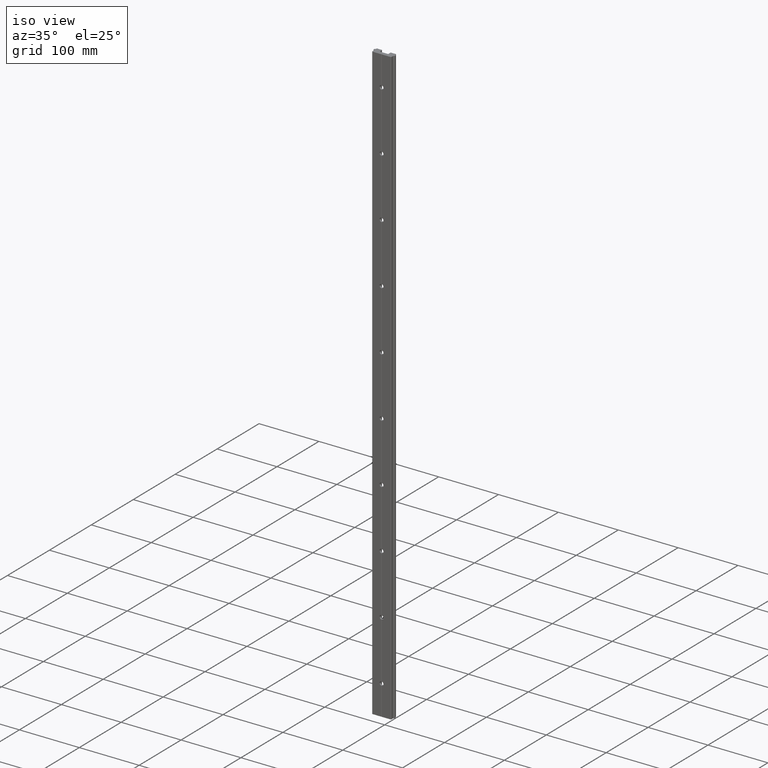
[diagram: clean part render]
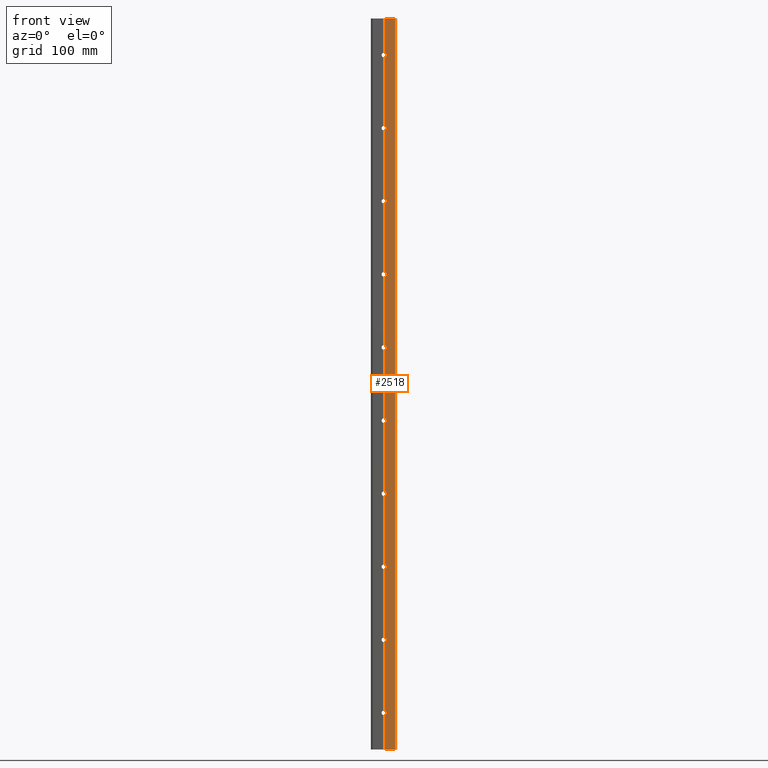
[diagram: tour spotlight — one face highlighted and labeled with its STEP entity id]
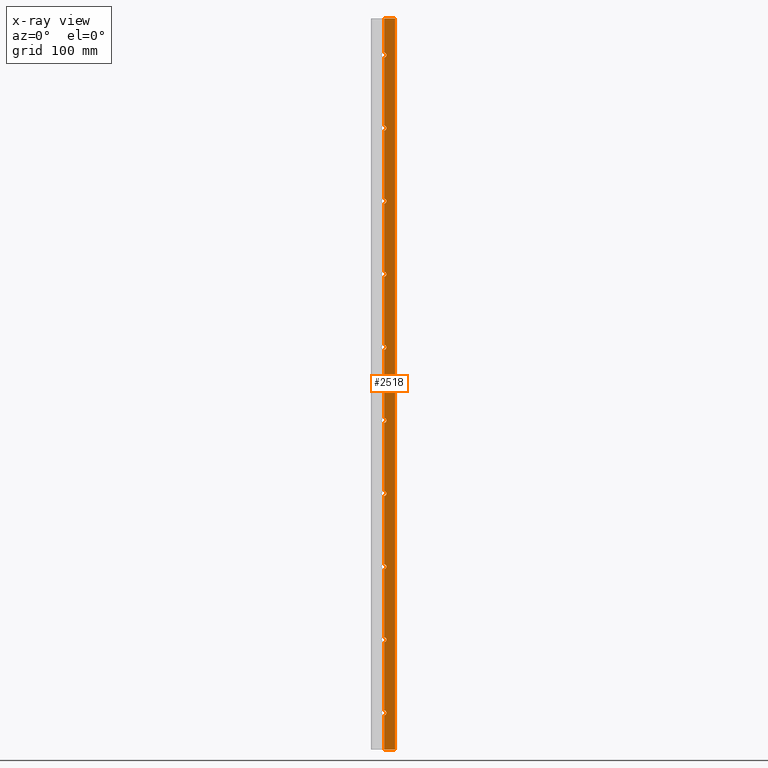
[diagram: x-ray of the same camera — body ghosted, this tour face saturated]
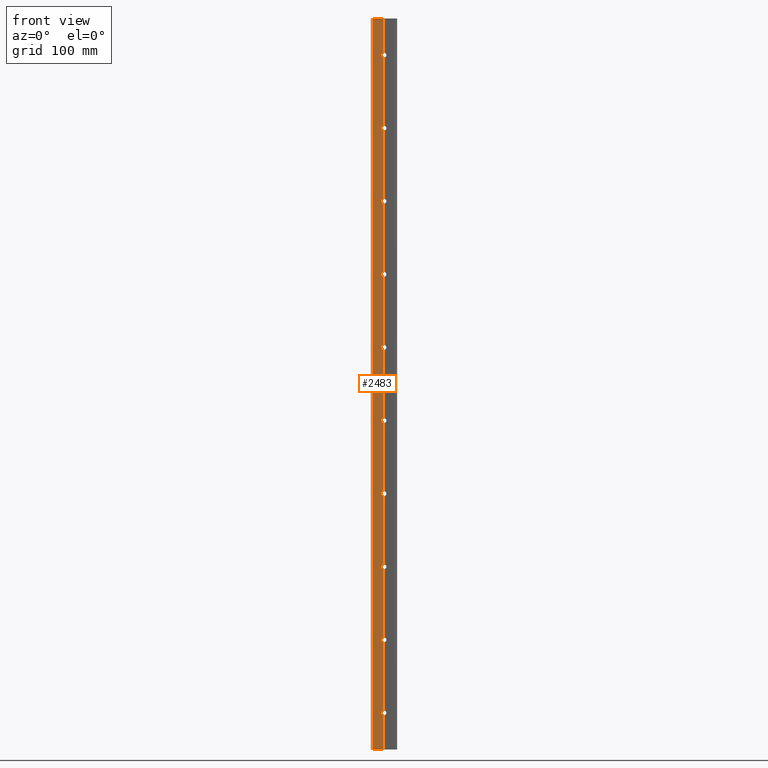
[diagram: tour spotlight — one face highlighted and labeled with its STEP entity id]
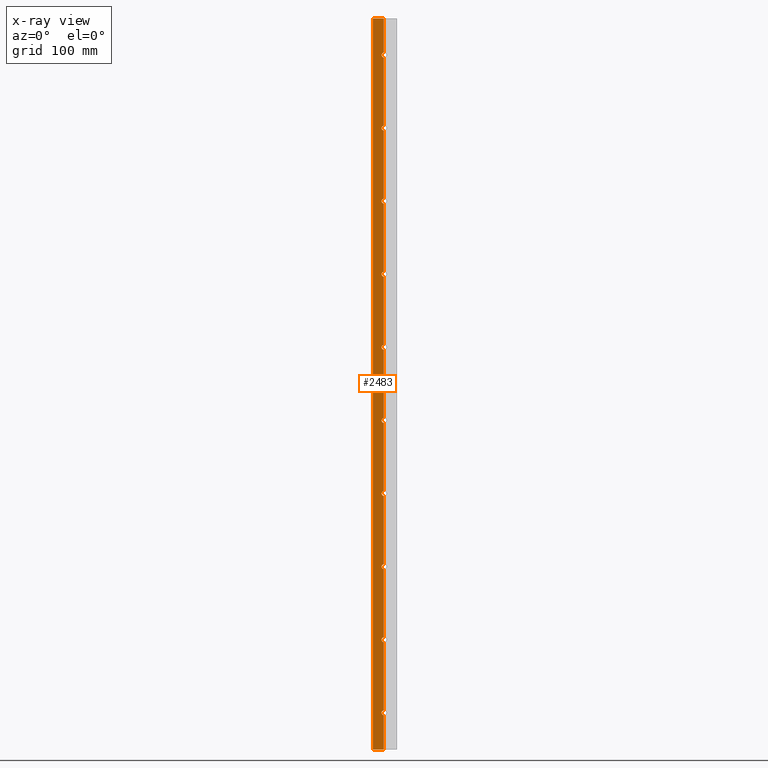
[diagram: x-ray of the same camera — body ghosted, this tour face saturated]
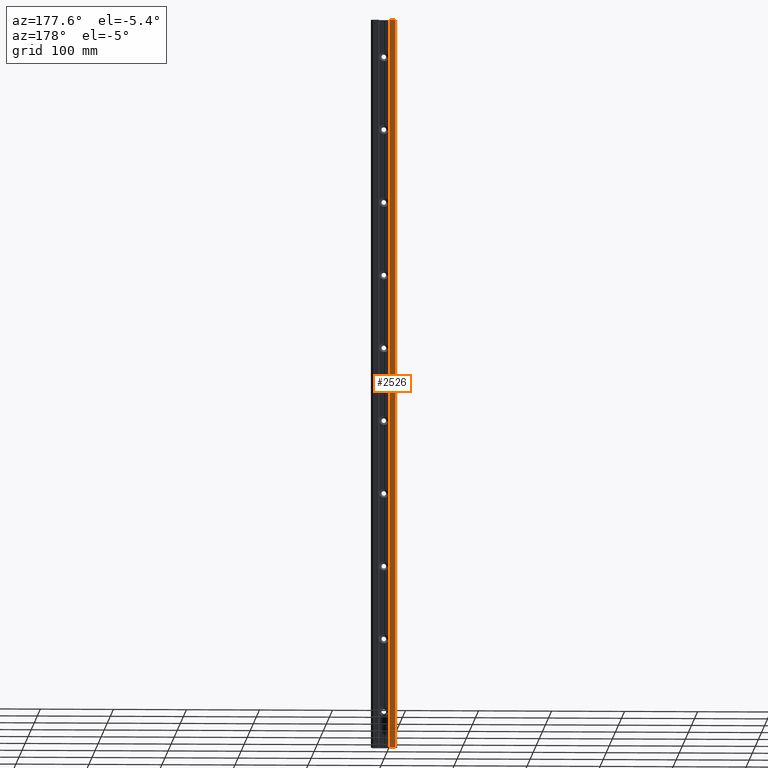
[diagram: tour spotlight — one face highlighted and labeled with its STEP entity id]
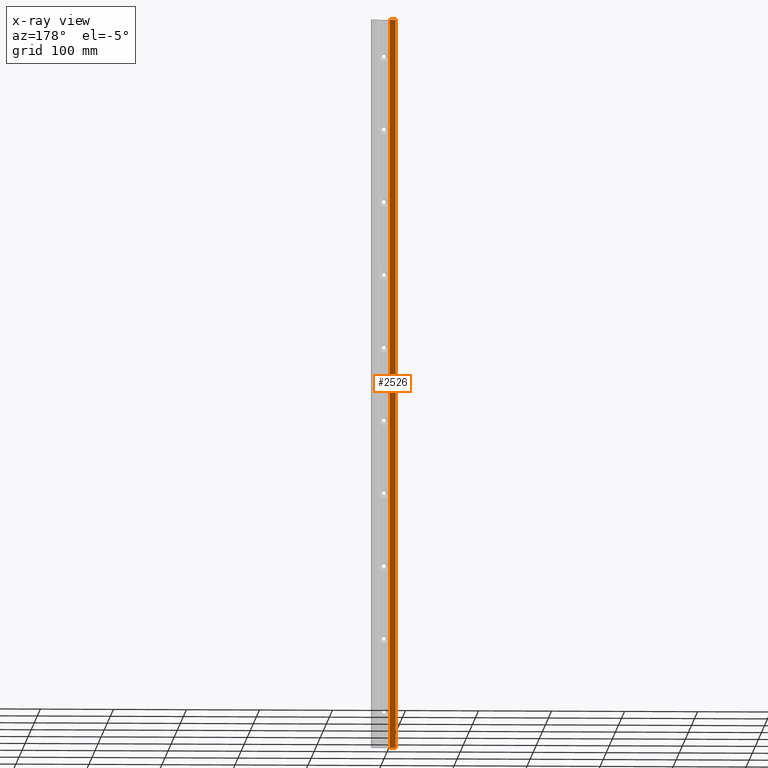
[diagram: x-ray of the same camera — body ghosted, this tour face saturated]
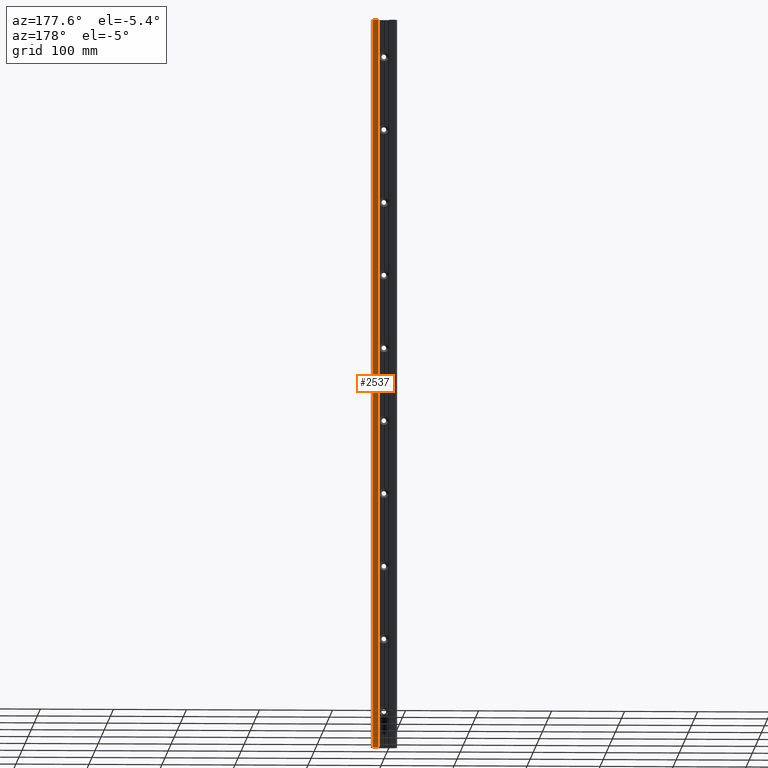
[diagram: tour spotlight — one face highlighted and labeled with its STEP entity id]
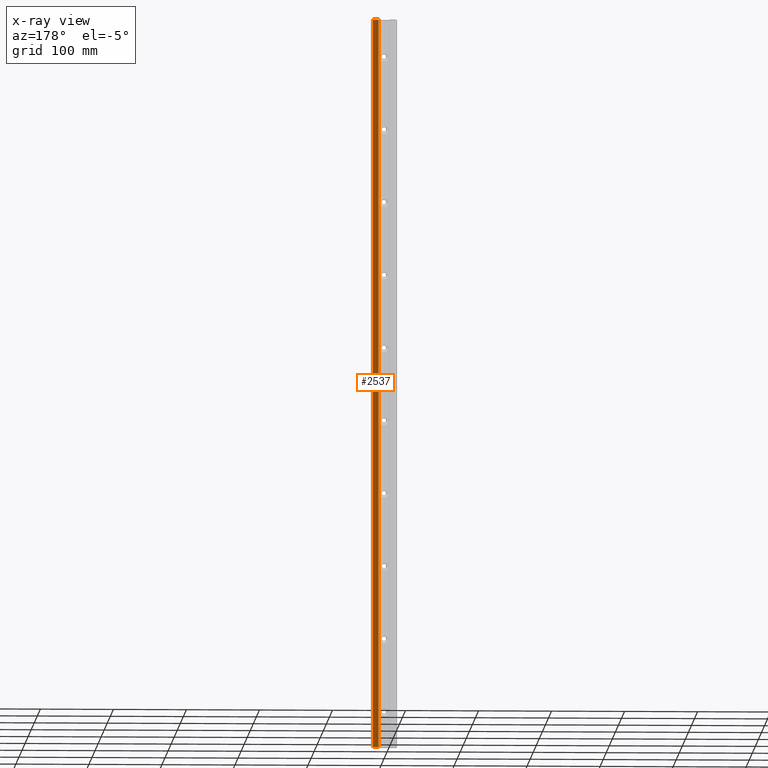
[diagram: x-ray of the same camera — body ghosted, this tour face saturated]
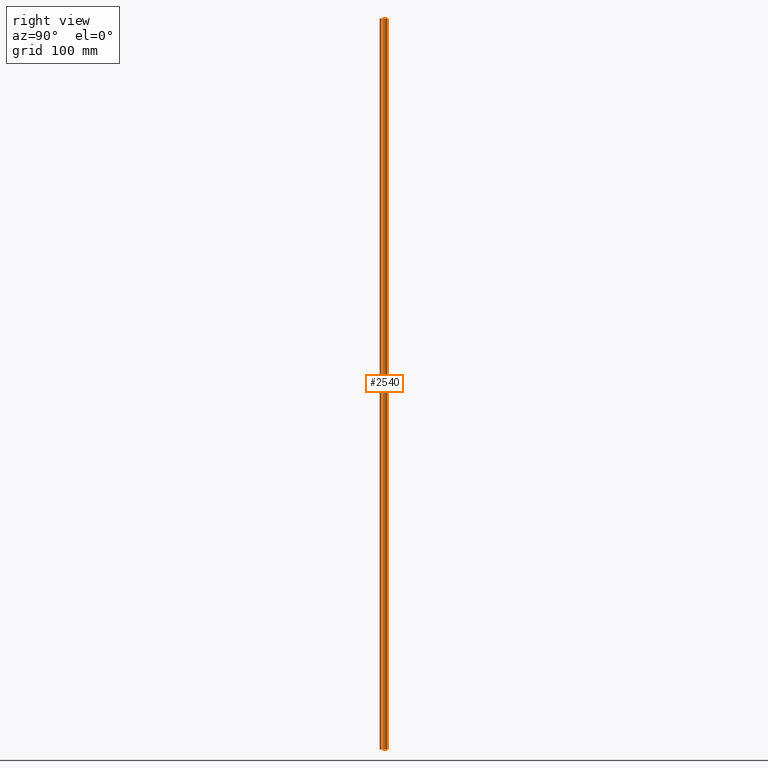
[diagram: tour spotlight — one face highlighted and labeled with its STEP entity id]
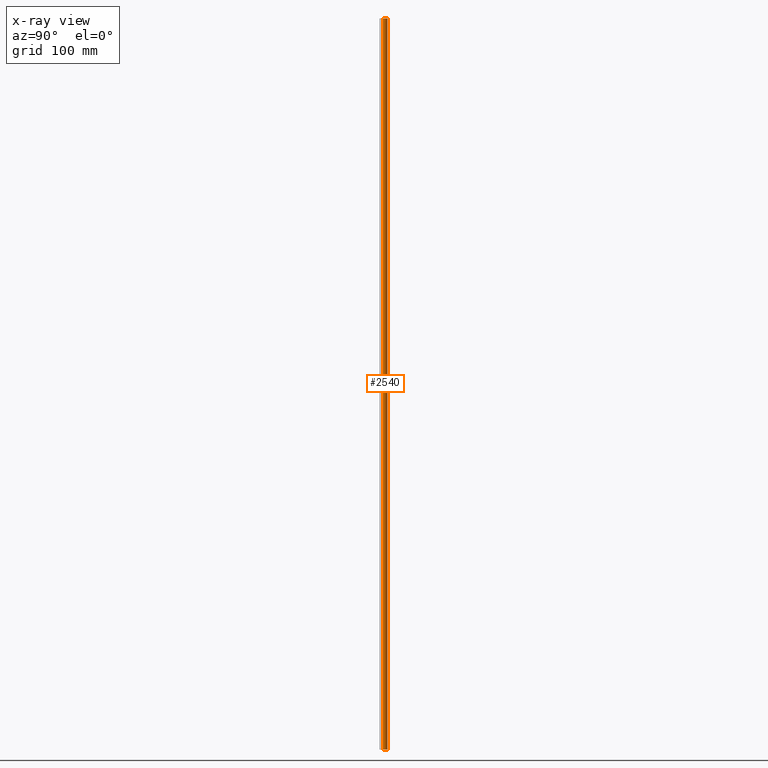
[diagram: x-ray of the same camera — body ghosted, this tour face saturated]
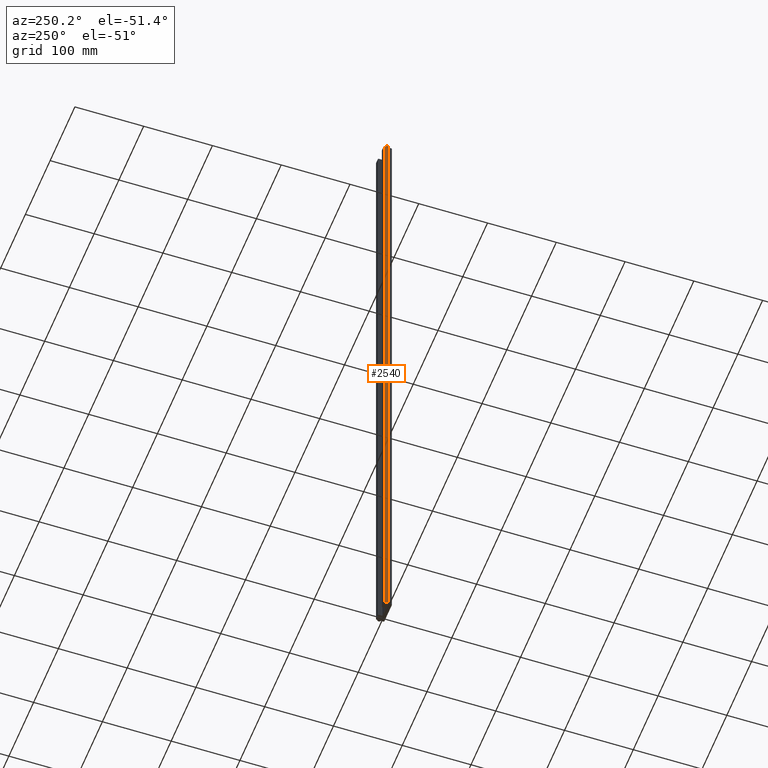
[diagram: tour spotlight — one face highlighted and labeled with its STEP entity id]
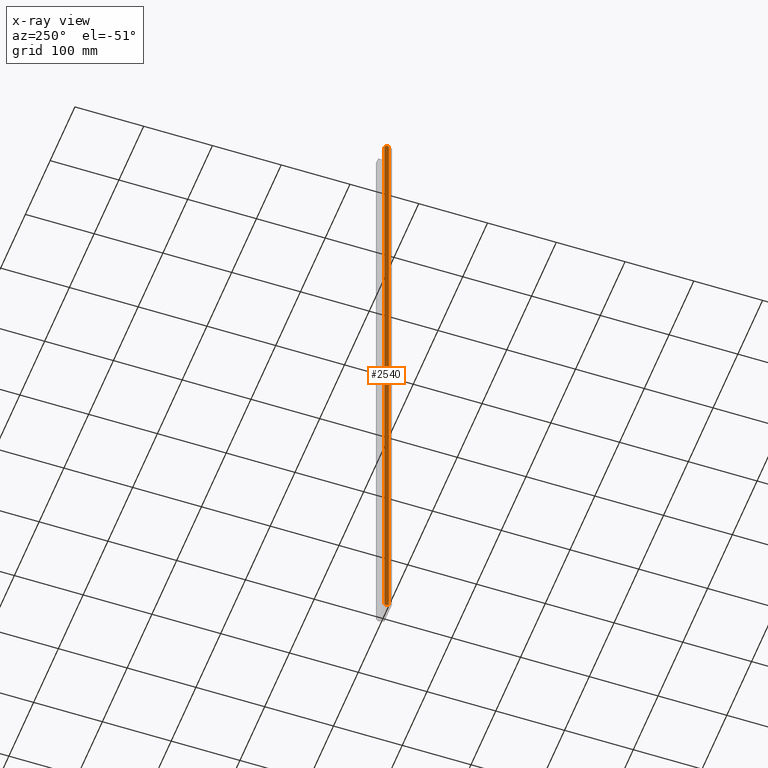
[diagram: x-ray of the same camera — body ghosted, this tour face saturated]
A machine part: a face-by-face anatomy tour. The part has 134 B-rep faces; the first image is the clean iso view, then the 6 largest visible faces are spotlighted one at a time (largest first), each with its STEP entity span.

Face 1 — front view, entity #2518. An x-ray twin of the same camera follows (body ghosted, this face saturated) — the face is partly hidden behind the body. In plain terms, the highlighted planar face has unit normal (0, -1, 0).
Definition (entity closure, byte-faithful):
#249=FACE_OUTER_BOUND('',#380,.T.);
#380=EDGE_LOOP('',(#2139,#2140,#2141,#2142,#2143,#2144,#2145,#2146,#2147,
#2148,#2149,#2150,#2151,#2152,#2153,#2154,#2155,#2156,#2157,#2158,#2159,
#2160,#2161,#2162));
#413=CIRCLE('',#2622,3.25);
#424=CIRCLE('',#2641,3.25);
#435=CIRCLE('',#2660,3.25);
#446=CIRCLE('',#2679,3.25);
#457=CIRCLE('',#2698,3.25);
#468=CIRCLE('',#2717,3.25);
#479=CIRCLE('',#2736,3.25);
#490=CIRCLE('',#2755,3.25);
#501=CIRCLE('',#2774,3.25);
#513=CIRCLE('',#2850,3.25);
#640=LINE('',#4340,#819);
#641=LINE('',#4343,#820);
#642=LINE('',#4345,#821);
#643=LINE('',#4347,#822);
#644=LINE('',#4349,#823);
#645=LINE('',#4351,#824);
#646=LINE('',#4353,#825);
#647=LINE('',#4355,#826);
#648=LINE('',#4357,#827);
#664=LINE('',#4414,#843);
#669=LINE('',#4431,#848);
#688=LINE('',#4487,#867);
#689=LINE('',#4489,#868);
#690=LINE('',#4490,#869);
#819=VECTOR('',#3469,10.);
#820=VECTOR('',#3474,10.);
#821=VECTOR('',#3477,10.);
#822=VECTOR('',#3480,10.);
#823=VECTOR('',#3483,10.);
#824=VECTOR('',#3486,10.);
#825=VECTOR('',#3489,10.);
#826=VECTOR('',#3492,10.);
#827=VECTOR('',#3495,10.);
#843=VECTOR('',#3549,10.);
#848=VECTOR('',#3562,10.);
#867=VECTOR('',#3611,10.);
#868=VECTOR('',#3614,10.);
#869=VECTOR('',#3615,10.);
#909=VERTEX_POINT('',#3757);
#910=VERTEX_POINT('',#3759);
#928=VERTEX_POINT('',#3811);
#929=VERTEX_POINT('',#3813);
#947=VERTEX_POINT('',#3865);
#948=VERTEX_POINT('',#3867);
#966=VERTEX_POINT('',#3919);
#967=VERTEX_POINT('',#3921);
#985=VERTEX_POINT('',#3973);
#986=VERTEX_POINT('',#3975);
#1004=VERTEX_POINT('',#4027);
#1005=VERTEX_POINT('',#4029);
#1023=VERTEX_POINT('',#4081);
#1024=VERTEX_POINT('',#4083);
#1042=VERTEX_POINT('',#4135);
#1043=VERTEX_POINT('',#4137);
#1061=VERTEX_POINT('',#4189);
#1062=VERTEX_POINT('',#4191);
#1078=VERTEX_POINT('',#4339);
#1086=VERTEX_POINT('',#4385);
#1094=VERTEX_POINT('',#4413);
#1101=VERTEX_POINT('',#4428);
#1102=VERTEX_POINT('',#4430);
#1124=VERTEX_POINT('',#4485);
#1156=EDGE_CURVE('',#910,#909,#413,.T.);
#1179=EDGE_CURVE('',#929,#928,#424,.T.);
#1202=EDGE_CURVE('',#948,#947,#435,.T.);
#1225=EDGE_CURVE('',#967,#966,#446,.T.);
#1248=EDGE_CURVE('',#986,#985,#457,.T.);
#1271=EDGE_CURVE('',#1005,#1004,#468,.T.);
#1294=EDGE_CURVE('',#1024,#1023,#479,.T.);
#1317=EDGE_CURVE('',#1043,#1042,#490,.T.);
#1340=EDGE_CURVE('',#1062,#1061,#501,.T.);
#1420=EDGE_CURVE('',#1078,#1062,#640,.T.);
#1422=EDGE_CURVE('',#1061,#1043,#641,.T.);
#1423=EDGE_CURVE('',#1042,#1024,#642,.T.);
#1424=EDGE_CURVE('',#1023,#1005,#643,.T.);
#1425=EDGE_CURVE('',#1004,#986,#644,.T.);
#1426=EDGE_CURVE('',#985,#967,#645,.T.);
#1427=EDGE_CURVE('',#966,#948,#646,.T.);
#1428=EDGE_CURVE('',#947,#929,#647,.T.);
#1429=EDGE_CURVE('',#928,#910,#648,.T.);
#1442=EDGE_CURVE('',#1086,#1078,#513,.T.);
#1456=EDGE_CURVE('',#1094,#1086,#664,.T.);
#1464=EDGE_CURVE('',#1101,#1102,#669,.T.);
#1493=EDGE_CURVE('',#1124,#1101,#688,.T.);
#1494=EDGE_CURVE('',#909,#1102,#689,.T.);
#1495=EDGE_CURVE('',#1094,#1124,#690,.T.);
#2139=ORIENTED_EDGE('',*,*,#1156,.T.);
#2140=ORIENTED_EDGE('',*,*,#1494,.T.);
#2141=ORIENTED_EDGE('',*,*,#1464,.F.);
#2142=ORIENTED_EDGE('',*,*,#1493,.F.);
#2143=ORIENTED_EDGE('',*,*,#1495,.F.);
#2144=ORIENTED_EDGE('',*,*,#1456,.T.);
#2145=ORIENTED_EDGE('',*,*,#1442,.T.);
#2146=ORIENTED_EDGE('',*,*,#1420,.T.);
#2147=ORIENTED_EDGE('',*,*,#1340,.T.);
#2148=ORIENTED_EDGE('',*,*,#1422,.T.);
#2149=ORIENTED_EDGE('',*,*,#1317,.T.);
#2150=ORIENTED_EDGE('',*,*,#1423,.T.);
#2151=ORIENTED_EDGE('',*,*,#1294,.T.);
#2152=ORIENTED_EDGE('',*,*,#1424,.T.);
#2153=ORIENTED_EDGE('',*,*,#1271,.T.);
#2154=ORIENTED_EDGE('',*,*,#1425,.T.);
#2155=ORIENTED_EDGE('',*,*,#1248,.T.);
#2156=ORIENTED_EDGE('',*,*,#1426,.T.);
#2157=ORIENTED_EDGE('',*,*,#1225,.T.);
#2158=ORIENTED_EDGE('',*,*,#1427,.T.);
#2159=ORIENTED_EDGE('',*,*,#1202,.T.);
#2160=ORIENTED_EDGE('',*,*,#1428,.T.);
#2161=ORIENTED_EDGE('',*,*,#1179,.T.);
#2162=ORIENTED_EDGE('',*,*,#1429,.T.);
#2395=PLANE('',#2878);
#2518=ADVANCED_FACE('',(#249),#2395,.T.);
#2622=AXIS2_PLACEMENT_3D('',#3760,#2950,#2951);
#2641=AXIS2_PLACEMENT_3D('',#3814,#2992,#2993);
#2660=AXIS2_PLACEMENT_3D('',#3868,#3034,#3035);
#2679=AXIS2_PLACEMENT_3D('',#3922,#3076,#3077);
#2698=AXIS2_PLACEMENT_3D('',#3976,#3118,#3119);
#2717=AXIS2_PLACEMENT_3D('',#4030,#3160,#3161);
#2736=AXIS2_PLACEMENT_3D('',#4084,#3202,#3203);
#2755=AXIS2_PLACEMENT_3D('',#4138,#3244,#3245);
#2774=AXIS2_PLACEMENT_3D('',#4192,#3286,#3287);
#2850=AXIS2_PLACEMENT_3D('',#4386,#3520,#3521);
#2878=AXIS2_PLACEMENT_3D('',#4488,#3612,#3613);
#2950=DIRECTION('center_axis',(-2.29701315439687E-16,1.,0.));
#2951=DIRECTION('ref_axis',(1.,0.,0.));
#2992=DIRECTION('center_axis',(-2.29701315439687E-16,1.,0.));
#2993=DIRECTION('ref_axis',(1.,0.,0.));
#3034=DIRECTION('center_axis',(-2.29701315439687E-16,1.,0.));
#3035=DIRECTION('ref_axis',(1.,0.,0.));
#3076=DIRECTION('center_axis',(-2.29701315439687E-16,1.,0.));
#3077=DIRECTION('ref_axis',(1.,0.,0.));
#3118=DIRECTION('center_axis',(-2.29701315439687E-16,1.,0.));
#3119=DIRECTION('ref_axis',(1.,0.,0.));
#3160=DIRECTION('center_axis',(-2.29701315439687E-16,1.,0.));
#3161=DIRECTION('ref_axis',(1.,0.,0.));
#3202=DIRECTION('center_axis',(-2.29701315439687E-16,1.,0.));
#3203=DIRECTION('ref_axis',(1.,0.,0.));
#3244=DIRECTION('center_axis',(-2.29701315439687E-16,1.,0.));
#3245=DIRECTION('ref_axis',(1.,0.,0.));
#3286=DIRECTION('center_axis',(-2.29701315439687E-16,1.,0.));
#3287=DIRECTION('ref_axis',(1.,0.,0.));
#3469=DIRECTION('',(0.,0.,-1.));
#3474=DIRECTION('',(0.,0.,-1.));
#3477=DIRECTION('',(0.,0.,-1.));
#3480=DIRECTION('',(0.,0.,-1.));
#3483=DIRECTION('',(0.,0.,-1.));
#3486=DIRECTION('',(0.,0.,-1.));
#3489=DIRECTION('',(0.,0.,-1.));
#3492=DIRECTION('',(0.,0.,-1.));
#3495=DIRECTION('',(0.,0.,-1.));
#3520=DIRECTION('center_axis',(-2.29701315439687E-16,1.,0.));
#3521=DIRECTION('ref_axis',(1.,0.,0.));
#3549=DIRECTION('',(0.,0.,-1.));
#3562=DIRECTION('',(-1.,-2.29701315439687E-16,0.));
#3611=DIRECTION('',(0.,0.,-1.));
#3612=DIRECTION('center_axis',(2.29701315439687E-16,-1.,0.));
#3613=DIRECTION('ref_axis',(1.,2.29701315439687E-16,0.));
#3614=DIRECTION('',(0.,0.,-1.));
#3615=DIRECTION('',(1.,2.29701315439687E-16,0.));
#3757=CARTESIAN_POINT('',(0.500000000000001,-7.5,-453.211308144666));
#3759=CARTESIAN_POINT('',(0.500000000000001,-7.5,-446.788691855334));
#3760=CARTESIAN_POINT('Origin',(0.,-7.5,-450.));
#3811=CARTESIAN_POINT('',(0.500000000000001,-7.5,-353.211308144666));
#3813=CARTESIAN_POINT('',(0.500000000000001,-7.5,-346.788691855334));
#3814=CARTESIAN_POINT('Origin',(0.,-7.5,-350.));
#3865=CARTESIAN_POINT('',(0.500000000000001,-7.5,-253.211308144666));
#3867=CARTESIAN_POINT('',(0.500000000000001,-7.5,-246.788691855334));
#3868=CARTESIAN_POINT('Origin',(0.,-7.5,-250.));
#3919=CARTESIAN_POINT('',(0.500000000000001,-7.5,-153.211308144666));
#3921=CARTESIAN_POINT('',(0.500000000000001,-7.5,-146.788691855334));
#3922=CARTESIAN_POINT('Origin',(0.,-7.5,-150.));
#3973=CARTESIAN_POINT('',(0.500000000000001,-7.5,-53.2113081446663));
#3975=CARTESIAN_POINT('',(0.500000000000001,-7.5,-46.7886918553337));
#3976=CARTESIAN_POINT('Origin',(0.,-7.5,-50.));
#4027=CARTESIAN_POINT('',(0.500000000000001,-7.5,46.7886918553337));
#4029=CARTESIAN_POINT('',(0.500000000000001,-7.5,53.2113081446663));
#4030=CARTESIAN_POINT('Origin',(0.,-7.5,50.));
#4081=CARTESIAN_POINT('',(0.500000000000001,-7.5,146.788691855334));
#4083=CARTESIAN_POINT('',(0.500000000000001,-7.5,153.211308144666));
#4084=CARTESIAN_POINT('Origin',(0.,-7.5,150.));
#4135=CARTESIAN_POINT('',(0.500000000000001,-7.5,246.788691855334));
#4137=CARTESIAN_POINT('',(0.500000000000001,-7.5,253.211308144666));
#4138=CARTESIAN_POINT('Origin',(0.,-7.5,250.));
#4189=CARTESIAN_POINT('',(0.500000000000001,-7.5,346.788691855334));
#4191=CARTESIAN_POINT('',(0.500000000000001,-7.5,353.211308144666));
#4192=CARTESIAN_POINT('Origin',(0.,-7.5,350.));
#4339=CARTESIAN_POINT('',(0.500000000000001,-7.5,446.788691855334));
#4340=CARTESIAN_POINT('',(0.500000000000001,-7.49999999999999,0.));
#4343=CARTESIAN_POINT('',(0.500000000000001,-7.49999999999999,0.));
#4345=CARTESIAN_POINT('',(0.500000000000001,-7.49999999999999,0.));
#4347=CARTESIAN_POINT('',(0.500000000000001,-7.49999999999999,0.));
#4349=CARTESIAN_POINT('',(0.500000000000001,-7.49999999999999,0.));
#4351=CARTESIAN_POINT('',(0.500000000000001,-7.49999999999999,0.));
#4353=CARTESIAN_POINT('',(0.500000000000001,-7.49999999999999,0.));
#4355=CARTESIAN_POINT('',(0.500000000000001,-7.49999999999999,0.));
#4357=CARTESIAN_POINT('',(0.500000000000001,-7.49999999999999,0.));
#4385=CARTESIAN_POINT('',(0.500000000000001,-7.5,453.211308144666));
#4386=CARTESIAN_POINT('Origin',(0.,-7.5,450.));
#4413=CARTESIAN_POINT('',(0.5,-7.49999999999999,500.));
#4414=CARTESIAN_POINT('',(0.500000000000001,-7.49999999999999,0.));
#4428=CARTESIAN_POINT('',(15.,-7.49999999999998,-500.));
#4430=CARTESIAN_POINT('',(0.5,-7.49999999999999,-500.));
#4431=CARTESIAN_POINT('',(15.,-7.49999999999998,-500.));
#4485=CARTESIAN_POINT('',(15.,-7.49999999999998,500.));
#4487=CARTESIAN_POINT('',(15.,-7.49999999999998,0.));
#4488=CARTESIAN_POINT('Origin',(0.5,-7.49999999999999,0.));
#4489=CARTESIAN_POINT('',(0.500000000000001,-7.49999999999999,0.));
#4490=CARTESIAN_POINT('',(15.,-7.49999999999998,500.));

Face 2 — front view, entity #2483. An x-ray twin of the same camera follows (body ghosted, this face saturated) — the face is partly hidden behind the body. In plain terms, the highlighted planar face has unit normal (0, -1, 0).
Definition (entity closure, byte-faithful):
#214=FACE_OUTER_BOUND('',#345,.T.);
#345=EDGE_LOOP('',(#1934,#1935,#1936,#1937,#1938,#1939,#1940,#1941,#1942,
#1943,#1944,#1945,#1946,#1947,#1948,#1949,#1950,#1951,#1952,#1953,#1954,
#1955,#1956,#1957,#1958,#1959,#1960,#1961,#1962,#1963,#1964,#1965,#1966,
#1967));
#412=CIRCLE('',#2619,3.25);
#414=CIRCLE('',#2625,3.25);
#423=CIRCLE('',#2638,3.25);
#425=CIRCLE('',#2644,3.25);
#434=CIRCLE('',#2657,3.25);
#436=CIRCLE('',#2663,3.25);
#445=CIRCLE('',#2676,3.25);
#447=CIRCLE('',#2682,3.25);
#456=CIRCLE('',#2695,3.25);
#458=CIRCLE('',#2701,3.25);
#467=CIRCLE('',#2714,3.25);
#469=CIRCLE('',#2720,3.25);
#478=CIRCLE('',#2733,3.25);
#480=CIRCLE('',#2739,3.25);
#489=CIRCLE('',#2752,3.25);
#491=CIRCLE('',#2758,3.25);
#500=CIRCLE('',#2771,3.25);
#502=CIRCLE('',#2777,3.25);
#505=CIRCLE('',#2818,3.25);
#506=CIRCLE('',#2819,3.25);
#617=LINE('',#4295,#796);
#618=LINE('',#4296,#797);
#619=LINE('',#4297,#798);
#620=LINE('',#4298,#799);
#621=LINE('',#4299,#800);
#622=LINE('',#4300,#801);
#623=LINE('',#4301,#802);
#624=LINE('',#4302,#803);
#625=LINE('',#4304,#804);
#626=LINE('',#4310,#805);
#627=LINE('',#4312,#806);
#628=LINE('',#4314,#807);
#629=LINE('',#4316,#808);
#630=LINE('',#4317,#809);
#796=VECTOR('',#3420,10.);
#797=VECTOR('',#3421,10.);
#798=VECTOR('',#3422,10.);
#799=VECTOR('',#3423,10.);
#800=VECTOR('',#3424,10.);
#801=VECTOR('',#3425,10.);
#802=VECTOR('',#3426,10.);
#803=VECTOR('',#3427,10.);
#804=VECTOR('',#3428,10.);
#805=VECTOR('',#3433,10.);
#806=VECTOR('',#3434,10.);
#807=VECTOR('',#3435,10.);
#808=VECTOR('',#3436,10.);
#809=VECTOR('',#3437,10.);
#906=VERTEX_POINT('',#3751);
#907=VERTEX_POINT('',#3753);
#912=VERTEX_POINT('',#3763);
#925=VERTEX_POINT('',#3805);
#926=VERTEX_POINT('',#3807);
#931=VERTEX_POINT('',#3817);
#944=VERTEX_POINT('',#3859);
#945=VERTEX_POINT('',#3861);
#950=VERTEX_POINT('',#3871);
#963=VERTEX_POINT('',#3913);
#964=VERTEX_POINT('',#3915);
#969=VERTEX_POINT('',#3925);
#982=VERTEX_POINT('',#3967);
#983=VERTEX_POINT('',#3969);
#988=VERTEX_POINT('',#3979);
#1001=VERTEX_POINT('',#4021);
#1002=VERTEX_POINT('',#4023);
#1007=VERTEX_POINT('',#4033);
#1020=VERTEX_POINT('',#4075);
#1021=VERTEX_POINT('',#4077);
#1026=VERTEX_POINT('',#4087);
#1039=VERTEX_POINT('',#4129);
#1040=VERTEX_POINT('',#4131);
#1045=VERTEX_POINT('',#4141);
#1058=VERTEX_POINT('',#4183);
#1059=VERTEX_POINT('',#4185);
#1064=VERTEX_POINT('',#4195);
#1070=VERTEX_POINT('',#4303);
#1071=VERTEX_POINT('',#4305);
#1072=VERTEX_POINT('',#4307);
#1073=VERTEX_POINT('',#4309);
#1074=VERTEX_POINT('',#4311);
#1075=VERTEX_POINT('',#4313);
#1076=VERTEX_POINT('',#4315);
#1153=EDGE_CURVE('',#907,#906,#412,.T.);
#1159=EDGE_CURVE('',#906,#912,#414,.T.);
#1176=EDGE_CURVE('',#926,#925,#423,.T.);
#1182=EDGE_CURVE('',#925,#931,#425,.T.);
#1199=EDGE_CURVE('',#945,#944,#434,.T.);
#1205=EDGE_CURVE('',#944,#950,#436,.T.);
#1222=EDGE_CURVE('',#964,#963,#445,.T.);
#1228=EDGE_CURVE('',#963,#969,#447,.T.);
#1245=EDGE_CURVE('',#983,#982,#456,.T.);
#1251=EDGE_CURVE('',#982,#988,#458,.T.);
#1268=EDGE_CURVE('',#1002,#1001,#467,.T.);
#1274=EDGE_CURVE('',#1001,#1007,#469,.T.);
#1291=EDGE_CURVE('',#1021,#1020,#478,.T.);
#1297=EDGE_CURVE('',#1020,#1026,#480,.T.);
#1314=EDGE_CURVE('',#1040,#1039,#489,.T.);
#1320=EDGE_CURVE('',#1039,#1045,#491,.T.);
#1337=EDGE_CURVE('',#1059,#1058,#500,.T.);
#1343=EDGE_CURVE('',#1058,#1064,#502,.T.);
#1394=EDGE_CURVE('',#926,#912,#617,.T.);
#1395=EDGE_CURVE('',#945,#931,#618,.T.);
#1396=EDGE_CURVE('',#964,#950,#619,.T.);
#1397=EDGE_CURVE('',#983,#969,#620,.T.);
#1398=EDGE_CURVE('',#1002,#988,#621,.T.);
#1399=EDGE_CURVE('',#1021,#1007,#622,.T.);
#1400=EDGE_CURVE('',#1040,#1026,#623,.T.);
#1401=EDGE_CURVE('',#1059,#1045,#624,.T.);
#1402=EDGE_CURVE('',#1070,#1064,#625,.T.);
#1403=EDGE_CURVE('',#1070,#1071,#505,.T.);
#1404=EDGE_CURVE('',#1071,#1072,#506,.T.);
#1405=EDGE_CURVE('',#1073,#1072,#626,.T.);
#1406=EDGE_CURVE('',#1074,#1073,#627,.T.);
#1407=EDGE_CURVE('',#1074,#1075,#628,.T.);
#1408=EDGE_CURVE('',#1076,#1075,#629,.T.);
#1409=EDGE_CURVE('',#907,#1076,#630,.T.);
#1934=ORIENTED_EDGE('',*,*,#1153,.T.);
#1935=ORIENTED_EDGE('',*,*,#1159,.T.);
#1936=ORIENTED_EDGE('',*,*,#1394,.F.);
#1937=ORIENTED_EDGE('',*,*,#1176,.T.);
#1938=ORIENTED_EDGE('',*,*,#1182,.T.);
#1939=ORIENTED_EDGE('',*,*,#1395,.F.);
#1940=ORIENTED_EDGE('',*,*,#1199,.T.);
#1941=ORIENTED_EDGE('',*,*,#1205,.T.);
#1942=ORIENTED_EDGE('',*,*,#1396,.F.);
#1943=ORIENTED_EDGE('',*,*,#1222,.T.);
#1944=ORIENTED_EDGE('',*,*,#1228,.T.);
#1945=ORIENTED_EDGE('',*,*,#1397,.F.);
#1946=ORIENTED_EDGE('',*,*,#1245,.T.);
#1947=ORIENTED_EDGE('',*,*,#1251,.T.);
#1948=ORIENTED_EDGE('',*,*,#1398,.F.);
#1949=ORIENTED_EDGE('',*,*,#1268,.T.);
#1950=ORIENTED_EDGE('',*,*,#1274,.T.);
#1951=ORIENTED_EDGE('',*,*,#1399,.F.);
#1952=ORIENTED_EDGE('',*,*,#1291,.T.);
#1953=ORIENTED_EDGE('',*,*,#1297,.T.);
#1954=ORIENTED_EDGE('',*,*,#1400,.F.);
#1955=ORIENTED_EDGE('',*,*,#1314,.T.);
#1956=ORIENTED_EDGE('',*,*,#1320,.T.);
#1957=ORIENTED_EDGE('',*,*,#1401,.F.);
#1958=ORIENTED_EDGE('',*,*,#1337,.T.);
#1959=ORIENTED_EDGE('',*,*,#1343,.T.);
#1960=ORIENTED_EDGE('',*,*,#1402,.F.);
#1961=ORIENTED_EDGE('',*,*,#1403,.T.);
#1962=ORIENTED_EDGE('',*,*,#1404,.T.);
#1963=ORIENTED_EDGE('',*,*,#1405,.F.);
#1964=ORIENTED_EDGE('',*,*,#1406,.F.);
#1965=ORIENTED_EDGE('',*,*,#1407,.T.);
#1966=ORIENTED_EDGE('',*,*,#1408,.F.);
#1967=ORIENTED_EDGE('',*,*,#1409,.F.);
#2365=PLANE('',#2817);
#2483=ADVANCED_FACE('',(#214),#2365,.T.);
#2619=AXIS2_PLACEMENT_3D('',#3754,#2944,#2945);
#2625=AXIS2_PLACEMENT_3D('',#3765,#2956,#2957);
#2638=AXIS2_PLACEMENT_3D('',#3808,#2986,#2987);
#2644=AXIS2_PLACEMENT_3D('',#3819,#2998,#2999);
#2657=AXIS2_PLACEMENT_3D('',#3862,#3028,#3029);
#2663=AXIS2_PLACEMENT_3D('',#3873,#3040,#3041);
#2676=AXIS2_PLACEMENT_3D('',#3916,#3070,#3071);
#2682=AXIS2_PLACEMENT_3D('',#3927,#3082,#3083);
#2695=AXIS2_PLACEMENT_3D('',#3970,#3112,#3113);
#2701=AXIS2_PLACEMENT_3D('',#3981,#3124,#3125);
#2714=AXIS2_PLACEMENT_3D('',#4024,#3154,#3155);
#2720=AXIS2_PLACEMENT_3D('',#4035,#3166,#3167);
#2733=AXIS2_PLACEMENT_3D('',#4078,#3196,#3197);
#2739=AXIS2_PLACEMENT_3D('',#4089,#3208,#3209);
#2752=AXIS2_PLACEMENT_3D('',#4132,#3238,#3239);
#2758=AXIS2_PLACEMENT_3D('',#4143,#3250,#3251);
#2771=AXIS2_PLACEMENT_3D('',#4186,#3280,#3281);
#2777=AXIS2_PLACEMENT_3D('',#4197,#3292,#3293);
#2817=AXIS2_PLACEMENT_3D('',#4294,#3418,#3419);
#2818=AXIS2_PLACEMENT_3D('',#4306,#3429,#3430);
#2819=AXIS2_PLACEMENT_3D('',#4308,#3431,#3432);
#2944=DIRECTION('center_axis',(-7.65671051465625E-17,1.,0.));
#2945=DIRECTION('ref_axis',(1.,0.,0.));
#2956=DIRECTION('center_axis',(-7.65671051465625E-17,1.,0.));
#2957=DIRECTION('ref_axis',(1.,0.,0.));
#2986=DIRECTION('center_axis',(-7.65671051465625E-17,1.,0.));
#2987=DIRECTION('ref_axis',(1.,0.,0.));
#2998=DIRECTION('center_axis',(-7.65671051465625E-17,1.,0.));
#2999=DIRECTION('ref_axis',(1.,0.,0.));
#3028=DIRECTION('center_axis',(-7.65671051465625E-17,1.,0.));
#3029=DIRECTION('ref_axis',(1.,0.,0.));
#3040=DIRECTION('center_axis',(-7.65671051465625E-17,1.,0.));
#3041=DIRECTION('ref_axis',(1.,0.,0.));
#3070=DIRECTION('center_axis',(-7.65671051465625E-17,1.,0.));
#3071=DIRECTION('ref_axis',(1.,0.,0.));
#3082=DIRECTION('center_axis',(-7.65671051465625E-17,1.,0.));
#3083=DIRECTION('ref_axis',(1.,0.,0.));
#3112=DIRECTION('center_axis',(-7.65671051465625E-17,1.,0.));
#3113=DIRECTION('ref_axis',(1.,0.,0.));
#3124=DIRECTION('center_axis',(-7.65671051465625E-17,1.,0.));
#3125=DIRECTION('ref_axis',(1.,0.,0.));
#3154=DIRECTION('center_axis',(-7.65671051465625E-17,1.,0.));
#3155=DIRECTION('ref_axis',(1.,0.,0.));
#3166=DIRECTION('center_axis',(-7.65671051465625E-17,1.,0.));
#3167=DIRECTION('ref_axis',(1.,0.,0.));
#3196=DIRECTION('center_axis',(-7.65671051465625E-17,1.,0.));
#3197=DIRECTION('ref_axis',(1.,0.,0.));
#3208=DIRECTION('center_axis',(-7.65671051465625E-17,1.,0.));
#3209=DIRECTION('ref_axis',(1.,0.,0.));
#3238=DIRECTION('center_axis',(-7.65671051465625E-17,1.,0.));
#3239=DIRECTION('ref_axis',(1.,0.,0.));
#3250=DIRECTION('center_axis',(-7.65671051465625E-17,1.,0.));
#3251=DIRECTION('ref_axis',(1.,0.,0.));
#3280=DIRECTION('center_axis',(-7.65671051465625E-17,1.,0.));
#3281=DIRECTION('ref_axis',(1.,0.,0.));
#3292=DIRECTION('center_axis',(-7.65671051465625E-17,1.,0.));
#3293=DIRECTION('ref_axis',(1.,0.,0.));
#3418=DIRECTION('center_axis',(7.65671051465625E-17,-1.,0.));
#3419=DIRECTION('ref_axis',(1.,7.65671051465625E-17,0.));
#3420=DIRECTION('',(0.,0.,-1.));
#3421=DIRECTION('',(0.,0.,-1.));
#3422=DIRECTION('',(0.,0.,-1.));
#3423=DIRECTION('',(0.,0.,-1.));
#3424=DIRECTION('',(0.,0.,-1.));
#3425=DIRECTION('',(0.,0.,-1.));
#3426=DIRECTION('',(0.,0.,-1.));
#3427=DIRECTION('',(0.,0.,-1.));
#3428=DIRECTION('',(0.,0.,-1.));
#3429=DIRECTION('center_axis',(-7.65671051465625E-17,1.,0.));
#3430=DIRECTION('ref_axis',(1.,0.,0.));
#3431=DIRECTION('center_axis',(-7.65671051465625E-17,1.,0.));
#3432=DIRECTION('ref_axis',(1.,0.,0.));
#3433=DIRECTION('',(0.,0.,-1.));
#3434=DIRECTION('',(1.,7.65671051465625E-17,0.));
#3435=DIRECTION('',(0.,0.,-1.));
#3436=DIRECTION('',(-1.,-7.65671051465625E-17,0.));
#3437=DIRECTION('',(0.,0.,-1.));
#3751=CARTESIAN_POINT('',(-3.25,-7.50000000000014,-450.));
#3753=CARTESIAN_POINT('',(-0.499999999999995,-7.5,-453.211308144666));
#3754=CARTESIAN_POINT('Origin',(0.,-7.5,-450.));
#3763=CARTESIAN_POINT('',(-0.499999999999995,-7.5,-446.788691855334));
#3765=CARTESIAN_POINT('Origin',(0.,-7.5,-450.));
#3805=CARTESIAN_POINT('',(-3.25,-7.50000000000014,-350.));
#3807=CARTESIAN_POINT('',(-0.499999999999995,-7.5,-353.211308144666));
#3808=CARTESIAN_POINT('Origin',(0.,-7.5,-350.));
#3817=CARTESIAN_POINT('',(-0.499999999999995,-7.5,-346.788691855334));
#3819=CARTESIAN_POINT('Origin',(0.,-7.5,-350.));
#3859=CARTESIAN_POINT('',(-3.25,-7.50000000000014,-250.));
#3861=CARTESIAN_POINT('',(-0.499999999999995,-7.5,-253.211308144666));
#3862=CARTESIAN_POINT('Origin',(0.,-7.5,-250.));
#3871=CARTESIAN_POINT('',(-0.499999999999995,-7.5,-246.788691855334));
#3873=CARTESIAN_POINT('Origin',(0.,-7.5,-250.));
#3913=CARTESIAN_POINT('',(-3.25,-7.50000000000014,-150.));
#3915=CARTESIAN_POINT('',(-0.499999999999995,-7.5,-153.211308144666));
#3916=CARTESIAN_POINT('Origin',(0.,-7.5,-150.));
#3925=CARTESIAN_POINT('',(-0.499999999999995,-7.5,-146.788691855334));
#3927=CARTESIAN_POINT('Origin',(0.,-7.5,-150.));
#3967=CARTESIAN_POINT('',(-3.25,-7.50000000000014,-50.));
#3969=CARTESIAN_POINT('',(-0.499999999999995,-7.5,-53.2113081446663));
#3970=CARTESIAN_POINT('Origin',(0.,-7.5,-50.));
#3979=CARTESIAN_POINT('',(-0.499999999999995,-7.5,-46.7886918553337));
#3981=CARTESIAN_POINT('Origin',(0.,-7.5,-50.));
#4021=CARTESIAN_POINT('',(-3.25,-7.50000000000014,50.));
#4023=CARTESIAN_POINT('',(-0.499999999999995,-7.5,46.7886918553337));
#4024=CARTESIAN_POINT('Origin',(0.,-7.5,50.));
#4033=CARTESIAN_POINT('',(-0.499999999999995,-7.5,53.2113081446663));
#4035=CARTESIAN_POINT('Origin',(0.,-7.5,50.));
#4075=CARTESIAN_POINT('',(-3.25,-7.50000000000014,150.));
#4077=CARTESIAN_POINT('',(-0.499999999999995,-7.5,146.788691855334));
#4078=CARTESIAN_POINT('Origin',(0.,-7.5,150.));
#4087=CARTESIAN_POINT('',(-0.499999999999995,-7.5,153.211308144666));
#4089=CARTESIAN_POINT('Origin',(0.,-7.5,150.));
#4129=CARTESIAN_POINT('',(-3.25,-7.50000000000014,250.));
#4131=CARTESIAN_POINT('',(-0.499999999999995,-7.5,246.788691855334));
#4132=CARTESIAN_POINT('Origin',(0.,-7.5,250.));
#4141=CARTESIAN_POINT('',(-0.499999999999995,-7.5,253.211308144666));
#4143=CARTESIAN_POINT('Origin',(0.,-7.5,250.));
#4183=CARTESIAN_POINT('',(-3.25,-7.50000000000014,350.));
#4185=CARTESIAN_POINT('',(-0.499999999999995,-7.5,346.788691855334));
#4186=CARTESIAN_POINT('Origin',(0.,-7.5,350.));
#4195=CARTESIAN_POINT('',(-0.499999999999995,-7.5,353.211308144666));
#4197=CARTESIAN_POINT('Origin',(0.,-7.5,350.));
#4294=CARTESIAN_POINT('Origin',(-15.,-7.49999999999999,0.));
#4295=CARTESIAN_POINT('',(-0.499999999999995,-7.49999999999999,0.));
#4296=CARTESIAN_POINT('',(-0.499999999999995,-7.49999999999999,0.));
#4297=CARTESIAN_POINT('',(-0.499999999999995,-7.49999999999999,0.));
#4298=CARTESIAN_POINT('',(-0.499999999999995,-7.49999999999999,0.));
#4299=CARTESIAN_POINT('',(-0.499999999999995,-7.49999999999999,0.));
#4300=CARTESIAN_POINT('',(-0.499999999999995,-7.49999999999999,0.));
#4301=CARTESIAN_POINT('',(-0.499999999999995,-7.49999999999999,0.));
#4302=CARTESIAN_POINT('',(-0.499999999999995,-7.49999999999999,0.));
#4303=CARTESIAN_POINT('',(-0.499999999999995,-7.5,446.788691855334));
#4304=CARTESIAN_POINT('',(-0.499999999999995,-7.49999999999999,0.));
#4305=CARTESIAN_POINT('',(-3.25,-7.50000000000014,450.));
#4306=CARTESIAN_POINT('Origin',(0.,-7.5,450.));
#4307=CARTESIAN_POINT('',(-0.499999999999995,-7.5,453.211308144666));
#4308=CARTESIAN_POINT('Origin',(0.,-7.5,450.));
#4309=CARTESIAN_POINT('',(-0.499999999999995,-7.49999999999999,500.));
#4310=CARTESIAN_POINT('',(-0.499999999999995,-7.49999999999999,0.));
#4311=CARTESIAN_POINT('',(-15.,-7.49999999999999,500.));
#4312=CARTESIAN_POINT('',(-0.499999999999994,-7.49999999999999,500.));
#4313=CARTESIAN_POINT('',(-15.,-7.49999999999999,-500.));
#4314=CARTESIAN_POINT('',(-15.,-7.49999999999999,0.));
#4315=CARTESIAN_POINT('',(-0.499999999999995,-7.49999999999999,-500.));
#4316=CARTESIAN_POINT('',(-0.499999999999994,-7.49999999999999,-500.));
#4317=CARTESIAN_POINT('',(-0.499999999999995,-7.49999999999999,0.));

Face 3 — auxiliary view, entity #2526. An x-ray twin of the same camera follows (body ghosted, this face saturated) — the face is partly hidden behind the body. In plain terms, the highlighted planar face has unit normal (0, 1, 0).
Definition (entity closure, byte-faithful):
#257=FACE_OUTER_BOUND('',#388,.T.);
#388=EDGE_LOOP('',(#2191,#2192,#2193,#2194));
#674=LINE('',#4446,#853);
#698=LINE('',#4513,#877);
#699=LINE('',#4516,#878);
#700=LINE('',#4517,#879);
#853=VECTOR('',#3573,10.);
#877=VECTOR('',#3643,10.);
#878=VECTOR('',#3646,10.);
#879=VECTOR('',#3647,10.);
#1108=VERTEX_POINT('',#4443);
#1109=VERTEX_POINT('',#4445);
#1129=VERTEX_POINT('',#4511);
#1130=VERTEX_POINT('',#4515);
#1472=EDGE_CURVE('',#1108,#1109,#674,.T.);
#1506=EDGE_CURVE('',#1129,#1108,#698,.T.);
#1507=EDGE_CURVE('',#1130,#1129,#699,.T.);
#1508=EDGE_CURVE('',#1130,#1109,#700,.T.);
#2191=ORIENTED_EDGE('',*,*,#1506,.F.);
#2192=ORIENTED_EDGE('',*,*,#1507,.F.);
#2193=ORIENTED_EDGE('',*,*,#1508,.T.);
#2194=ORIENTED_EDGE('',*,*,#1472,.F.);
#2400=PLANE('',#2889);
#2526=ADVANCED_FACE('',(#257),#2400,.T.);
#2889=AXIS2_PLACEMENT_3D('',#4514,#3644,#3645);
#3573=DIRECTION('',(1.,0.,0.));
#3643=DIRECTION('',(0.,0.,-1.));
#3644=DIRECTION('center_axis',(0.,1.,0.));
#3645=DIRECTION('ref_axis',(-1.,0.,0.));
#3646=DIRECTION('',(-1.,0.,0.));
#3647=DIRECTION('',(0.,0.,-1.));
#4443=CARTESIAN_POINT('',(-15.5,4.5,-500.));
#4445=CARTESIAN_POINT('',(-8.,4.5,-500.));
#4446=CARTESIAN_POINT('',(-15.5,4.5,-500.));
#4511=CARTESIAN_POINT('',(-15.5,4.5,500.));
#4513=CARTESIAN_POINT('',(-15.5,4.5,0.));
#4514=CARTESIAN_POINT('Origin',(-8.,4.5,0.));
#4515=CARTESIAN_POINT('',(-8.,4.5,500.));
#4516=CARTESIAN_POINT('',(-15.5,4.5,500.));
#4517=CARTESIAN_POINT('',(-8.,4.5,0.));

Face 4 — auxiliary view, entity #2537. An x-ray twin of the same camera follows (body ghosted, this face saturated) — the face is partly hidden behind the body. In plain terms, the highlighted planar face has unit normal (-0, 1, 0).
Definition (entity closure, byte-faithful):
#268=FACE_OUTER_BOUND('',#399,.T.);
#399=EDGE_LOOP('',(#2275,#2276,#2277,#2278));
#666=LINE('',#4419,#845);
#681=LINE('',#4468,#860);
#712=LINE('',#4548,#891);
#713=LINE('',#4550,#892);
#845=VECTOR('',#3553,10.);
#860=VECTOR('',#3590,10.);
#891=VECTOR('',#3687,10.);
#892=VECTOR('',#3690,10.);
#1095=VERTEX_POINT('',#4417);
#1096=VERTEX_POINT('',#4418);
#1119=VERTEX_POINT('',#4467);
#1135=VERTEX_POINT('',#4546);
#1458=EDGE_CURVE('',#1095,#1096,#666,.T.);
#1483=EDGE_CURVE('',#1119,#1096,#681,.T.);
#1524=EDGE_CURVE('',#1095,#1135,#712,.T.);
#1525=EDGE_CURVE('',#1119,#1135,#713,.T.);
#2275=ORIENTED_EDGE('',*,*,#1524,.T.);
#2276=ORIENTED_EDGE('',*,*,#1525,.F.);
#2277=ORIENTED_EDGE('',*,*,#1483,.T.);
#2278=ORIENTED_EDGE('',*,*,#1458,.F.);
#2407=PLANE('',#2904);
#2537=ADVANCED_FACE('',(#268),#2407,.T.);
#2904=AXIS2_PLACEMENT_3D('',#4549,#3688,#3689);
#3553=DIRECTION('',(1.,5.92118946466751E-16,0.));
#3590=DIRECTION('',(0.,0.,-1.));
#3687=DIRECTION('',(0.,0.,1.));
#3688=DIRECTION('center_axis',(-5.92118946466751E-16,1.,0.));
#3689=DIRECTION('ref_axis',(-1.,-5.92118946466751E-16,0.));
#3690=DIRECTION('',(-1.,-5.92118946466751E-16,0.));
#4417=CARTESIAN_POINT('',(8.00000000000002,4.50000000000001,-500.));
#4418=CARTESIAN_POINT('',(15.5,4.50000000000001,-500.));
#4419=CARTESIAN_POINT('',(8.00000000000002,4.50000000000001,-500.));
#4467=CARTESIAN_POINT('',(15.5,4.50000000000001,500.));
#4468=CARTESIAN_POINT('',(15.5,4.50000000000001,0.));
#4546=CARTESIAN_POINT('',(8.00000000000002,4.50000000000001,500.));
#4548=CARTESIAN_POINT('',(8.00000000000002,4.50000000000001,0.));
#4549=CARTESIAN_POINT('Origin',(15.5,4.50000000000001,0.));
#4550=CARTESIAN_POINT('',(8.00000000000002,4.50000000000001,500.));

Face 5 — right view, entity #2540. An x-ray twin of the same camera follows (body ghosted, this face saturated) — the face is partly hidden behind the body. In plain terms, the highlighted cylindrical surface (bore or boss wall) has radius 3 mm, axis along (0, 0, 1).
Definition (entity closure, byte-faithful):
#91=CYLINDRICAL_SURFACE('',#2909,3.);
#271=FACE_OUTER_BOUND('',#402,.T.);
#402=EDGE_LOOP('',(#2306,#2307,#2308,#2309));
#534=CIRCLE('',#2908,3.);
#535=CIRCLE('',#2910,3.);
#714=LINE('',#4559,#893);
#893=VECTOR('',#3703,3.);
#1136=VERTEX_POINT('',#4554);
#1137=VERTEX_POINT('',#4557);
#1526=EDGE_CURVE('',#1136,#1136,#534,.T.);
#1527=EDGE_CURVE('',#1137,#1137,#535,.T.);
#1528=EDGE_CURVE('',#1137,#1136,#714,.T.);
#2306=ORIENTED_EDGE('',*,*,#1527,.F.);
#2307=ORIENTED_EDGE('',*,*,#1528,.T.);
#2308=ORIENTED_EDGE('',*,*,#1526,.F.);
#2309=ORIENTED_EDGE('',*,*,#1528,.F.);
#2540=ADVANCED_FACE('',(#271),#91,.T.);
#2908=AXIS2_PLACEMENT_3D('',#4555,#3697,#3698);
#2909=AXIS2_PLACEMENT_3D('',#4556,#3699,#3700);
#2910=AXIS2_PLACEMENT_3D('',#4558,#3701,#3702);
#3697=DIRECTION('center_axis',(-1.,0.,0.));
#3698=DIRECTION('ref_axis',(0.,-1.,0.));
#3699=DIRECTION('center_axis',(1.,0.,0.));
#3700=DIRECTION('ref_axis',(0.,-1.,0.));
#3701=DIRECTION('center_axis',(1.,0.,0.));
#3702=DIRECTION('ref_axis',(0.,-1.,0.));
#3703=DIRECTION('',(-1.,0.,0.));
#4554=CARTESIAN_POINT('',(-500.,3.,3.67394039744206E-16));
#4555=CARTESIAN_POINT('Origin',(-500.,0.,0.));
#4556=CARTESIAN_POINT('Origin',(0.,0.,0.));
#4557=CARTESIAN_POINT('',(500.,3.,3.67394039744206E-16));
#4558=CARTESIAN_POINT('Origin',(500.,0.,0.));
#4559=CARTESIAN_POINT('',(0.,3.,3.67394039744206E-16));

Face 6 — auxiliary view, entity #2540. An x-ray twin of the same camera follows (body ghosted, this face saturated) — the face is partly hidden behind the body. In plain terms, the highlighted cylindrical surface (bore or boss wall) has radius 3 mm, axis along (0, 0, 1).
Definition (entity closure, byte-faithful):
#91=CYLINDRICAL_SURFACE('',#2909,3.);
#271=FACE_OUTER_BOUND('',#402,.T.);
#402=EDGE_LOOP('',(#2306,#2307,#2308,#2309));
#534=CIRCLE('',#2908,3.);
#535=CIRCLE('',#2910,3.);
#714=LINE('',#4559,#893);
#893=VECTOR('',#3703,3.);
#1136=VERTEX_POINT('',#4554);
#1137=VERTEX_POINT('',#4557);
#1526=EDGE_CURVE('',#1136,#1136,#534,.T.);
#1527=EDGE_CURVE('',#1137,#1137,#535,.T.);
#1528=EDGE_CURVE('',#1137,#1136,#714,.T.);
#2306=ORIENTED_EDGE('',*,*,#1527,.F.);
#2307=ORIENTED_EDGE('',*,*,#1528,.T.);
#2308=ORIENTED_EDGE('',*,*,#1526,.F.);
#2309=ORIENTED_EDGE('',*,*,#1528,.F.);
#2540=ADVANCED_FACE('',(#271),#91,.T.);
#2908=AXIS2_PLACEMENT_3D('',#4555,#3697,#3698);
#2909=AXIS2_PLACEMENT_3D('',#4556,#3699,#3700);
#2910=AXIS2_PLACEMENT_3D('',#4558,#3701,#3702);
#3697=DIRECTION('center_axis',(-1.,0.,0.));
#3698=DIRECTION('ref_axis',(0.,-1.,0.));
#3699=DIRECTION('center_axis',(1.,0.,0.));
#3700=DIRECTION('ref_axis',(0.,-1.,0.));
#3701=DIRECTION('center_axis',(1.,0.,0.));
#3702=DIRECTION('ref_axis',(0.,-1.,0.));
#3703=DIRECTION('',(-1.,0.,0.));
#4554=CARTESIAN_POINT('',(-500.,3.,3.67394039744206E-16));
#4555=CARTESIAN_POINT('Origin',(-500.,0.,0.));
#4556=CARTESIAN_POINT('Origin',(0.,0.,0.));
#4557=CARTESIAN_POINT('',(500.,3.,3.67394039744206E-16));
#4558=CARTESIAN_POINT('Origin',(500.,0.,0.));
#4559=CARTESIAN_POINT('',(0.,3.,3.67394039744206E-16));